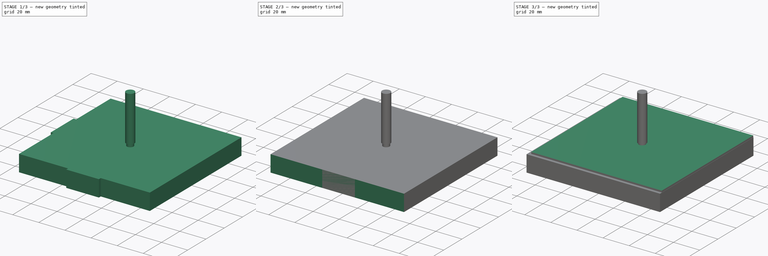
[diagram: build sequence overview — one tinted view per stage of 3, left to right]
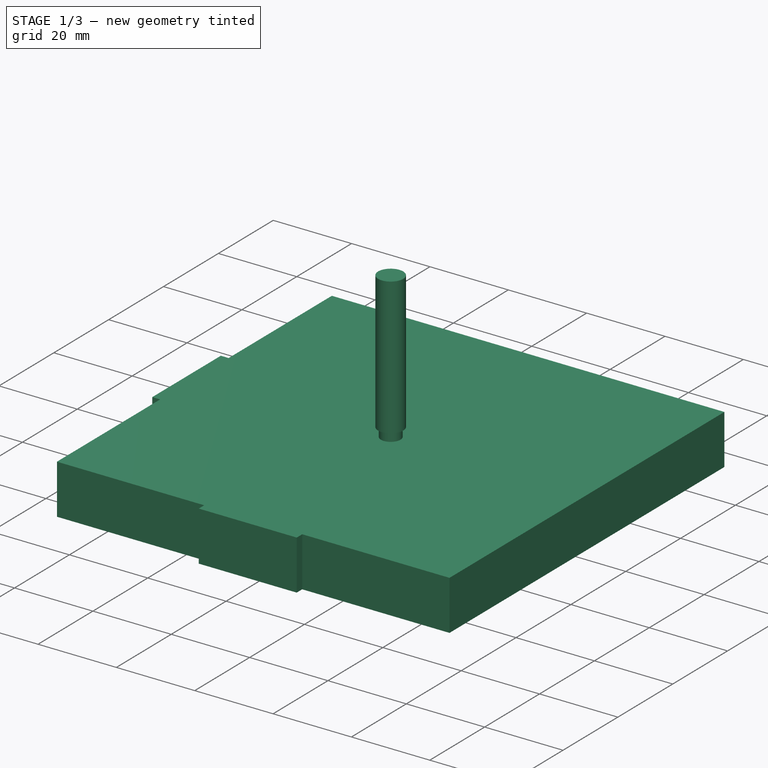
[diagram: stage 1 of 3 — iso view after this stage's code; geometry added in this stage tinted green]
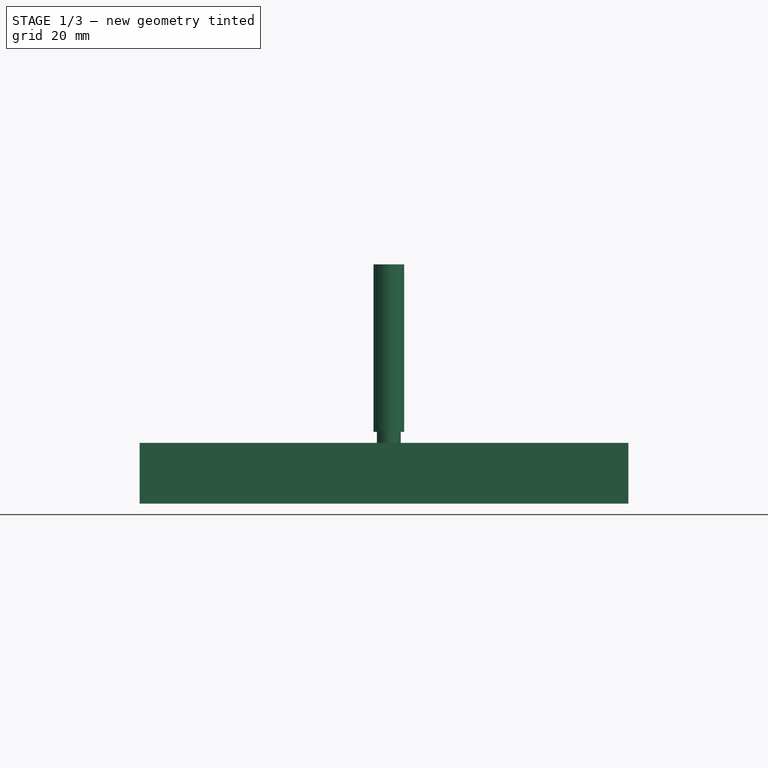
[diagram: stage 1 of 3 — front view after this stage's code; geometry added in this stage tinted green]
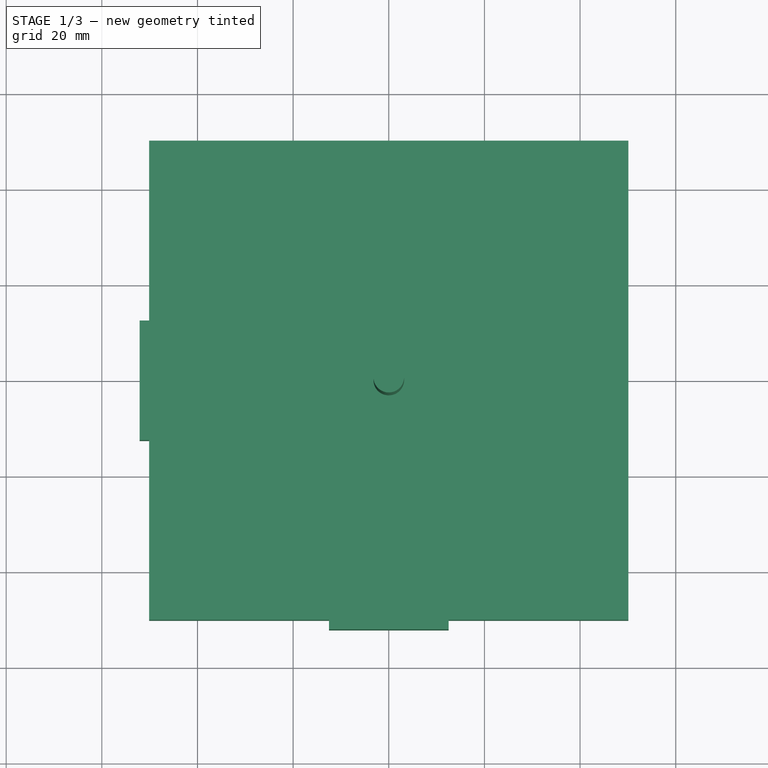
[diagram: stage 1 of 3 — top view after this stage's code; geometry added in this stage tinted green]
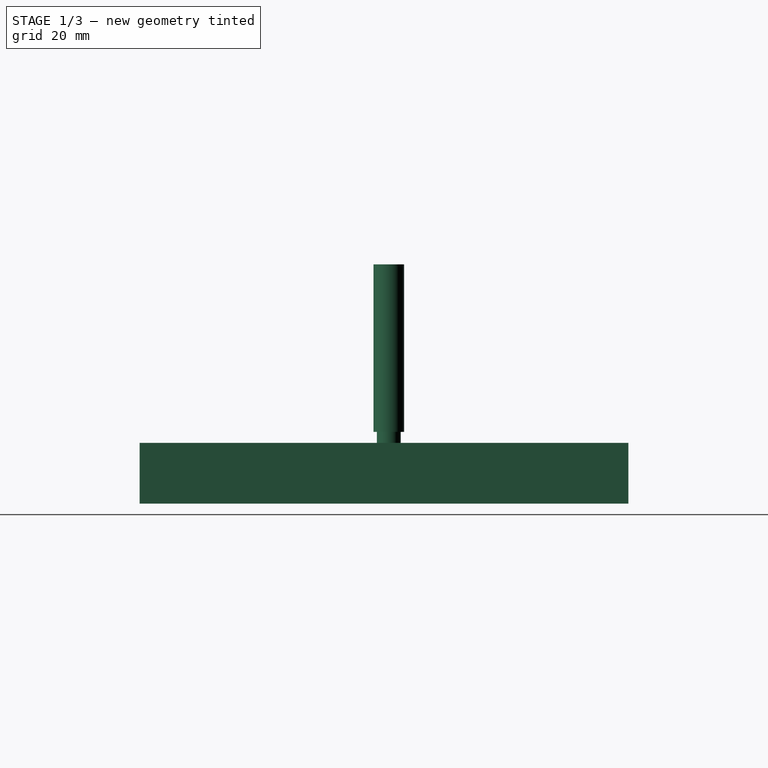
[diagram: stage 1 of 3 — right view after this stage's code; geometry added in this stage tinted green]
FCSTD DOCUMENT  (FreeCAD 0.20RUnknown)
Label: Coasters
License: All rights reserved
LicenseURL: http://en.wikipedia.org/wiki/All_rights_reserved
objects: Path::FeaturePython×9, Part::FeaturePython×6, App::DocumentObjectGroup×6, Sketcher::SketchObject×2, PartDesign::Pad×2, PartDesign::Body×2, App::FeaturePython×2
note: 17 computed .brp shape members not serialized (recipe doc carries the construction recipe); baked Part::Feature solids carry a one-line shape summary decoded from their .brp

FEATURE [Path::FeaturePython] _mm_Endmill  label="5mm Endmill001"  # Path/CAM operation (typed FeaturePython)
  HorizFeed = 15
  HorizRapid = 0
  SpindleDir = 0
  SpindleSpeed = 12000
  Tool = -> ToolBit001
  ToolNumber = 2
  VertFeed = 5
  VertRapid = 0
  expr: HorizRapid = SetupSheet.HorizRapid
  expr: VertRapid = SetupSheet.VertRapid
FEATURE [App::DocumentObjectGroup] Tools
  Group = -> [_mm_Endmill]
FEATURE [Path::FeaturePython] Profile  # Path/CAM operation (typed FeaturePython)
  Active = true
  AreaParams:
    Tolerance = 1e-07
    FitArcs = True
    Simplify = False
    CleanDistance = 0.0
    Accuracy = 0.01
    Unit = 1.0
    MinArcPoints = 4
    MaxArcPoints = 100
    ClipperScale = 10000000.0
    Fill = 0
    Coplanar = 0
    Reorient = True
    Outline = False
    Explode = False
    OpenMode = 0
    Deflection = 0.01
    SubjectFill = 0
    ClipFill = 0
    Offset = 2.5
    ExtraPass = 0
    Stepover = 0.0
    LastStepover = 0.0
    JoinType = 0
    EndType = 0
    MiterLimit = 2.0
    RoundPrecision = 0.0
    PocketMode = 0
    ToolRadius = 1.0
    PocketExtraOffset = 0.0
    PocketStepover = 0.0
    PocketLastStepover = 0.0
    FromCenter = False
    Angle = 45.0
    AngleShift = 0.0
    Shift = 0.0
    Thicken = False
    SectionCount = -1
    Stepdown = 1.0
    SectionOffset = 0.0
    SectionTolerance = 1e-06
    SectionMode = 2
    Project = False
  Base = -> [Clone]
  ClearanceHeight = 19
  CoolantMode = 0
  CycleTime = 00:02:25
  Direction = 0
  FinalDepth = 0
  HandleMultipleFeatures = 0
  JoinType = 0
  MiterLimit = 0.1
  OffsetExtra = 0
  OpFinalDepth = 14
  OpStartDepth = 17
  OpStockZMax = 14
  OpStockZMin = 0
  OpToolDiameter = 5
  PathParams = {'orientation': 1, 'feedrate': 15.0, 'feedrate_v': 5.0, 'verbose': True, 'resume_height': 17.0, 'retraction': 19.0, 'return_end': True, 'preamble': False}
  SafeHeight = 17
  Side = 0
  SplitArcs = false
  StartDepth = 14
  StartPoint = (0,0,0)
  StepDown = 3
  ToolController = -> _mm_Endmill
  UseComp = true
  UseStartPoint = false
  processCircles = false
  processHoles = false
  processPerimeter = true
  expr: ClearanceHeight = 19
  expr: FinalDepth = 0
  expr: SafeHeight = 17
  expr: StartDepth = 14
  expr: StepDown = 3
FEATURE [Path::FeaturePython] DressupTag  # Path/CAM operation (typed FeaturePython)
  Angle = 45
  Base = -> Profile
  Height = 1
  Positions = (4) [(52.499,0.049075,0),(0.049075,-52.499,0),(-52.499,-0.049075,0),(-0.0490745,52.499,0)]
  Radius = 0
  SegmentationFactor = 50
  Width = 12
FEATURE [Path::FeaturePython] Array  # Path/CAM operation (typed FeaturePython)
  Active = true
  Angle = 0
  Base = -> [DressupTag]
  Centre = (0,0,0)
  Copies = 15
  CopiesX = 0
  CopiesY = 0
  JitterMagnitude = (0,0,0)
  JitterPercent = 0
  JitterSeed = 0
  Offset = (106,0,0)
  SwapDirection = false
  ToolController = -> _mm_Endmill
  Type = 0
FEATURE [App::DocumentObjectGroup] Operations
  Group = -> [DressupTag,Array]
FEATURE [Path::FeaturePython] Job  # Path/CAM operation (typed FeaturePython)
  CycleTime = 00:02:25
  Fixtures = G54
  GeometryTolerance = 0.01
  JobType = 0
  Model = -> Model
  Operations = -> Operations
  OrderOutputBy = 0
  PostProcessor = 2
  PostProcessorOutputFile = %D/%d.ngc
  SetupSheet = -> SetupSheet
  SplitOutput = false
  Stock = -> Stock001
  Tools = -> Tools
FEATURE [Sketcher::SketchObject] Sketch001
  FullyConstrained = true
  MapMode = 5
  Support = -> [XY_Plane001]
  sketch-geometry (13):
    g0: LineSegment StartX=-50.1 StartY=50.1 StartZ=0 EndX=-50.1 EndY=12.5 EndZ=0
    g1: LineSegment StartX=-50.1 StartY=-50.1 StartZ=0 EndX=-12.5 EndY=-50.1 EndZ=0
    g2: LineSegment StartX=50.1 StartY=-50.1 StartZ=0 EndX=50.1 EndY=50.1 EndZ=0
    g3: LineSegment StartX=50.1 StartY=50.1 StartZ=0 EndX=-50.1 EndY=50.1 EndZ=0
    g4: GeomPoint X=0 Y=0 Z=0
    g5: LineSegment StartX=-52.1 StartY=12.5 StartZ=0 EndX=-50.1 EndY=12.5 EndZ=0
    g6: LineSegment StartX=-50.1 StartY=-12.5 StartZ=0 EndX=-52.1 EndY=-12.5 EndZ=0
    g7: LineSegment StartX=-52.1 StartY=-12.5 StartZ=0 EndX=-52.1 EndY=12.5 EndZ=0
    g8: LineSegment StartX=12.5 StartY=-50.1 StartZ=0 EndX=12.5 EndY=-52.1 EndZ=0
    g9: LineSegment StartX=12.5 StartY=-52.1 StartZ=0 EndX=-12.5 EndY=-52.1 EndZ=0
    g10: LineSegment StartX=-12.5 StartY=-52.1 StartZ=0 EndX=-12.5 EndY=-50.1 EndZ=0
    g11: LineSegment StartX=-50.1 StartY=-12.5 StartZ=0 EndX=-50.1 EndY=-50.1 EndZ=0
    g12: LineSegment StartX=12.5 StartY=-50.1 StartZ=0 EndX=50.1 EndY=-50.1 EndZ=0
  constraints (34):
    c: Coincident(g11,g1)
    c: Coincident(g12,g2)
    c: Coincident(g2,g3)
    c: Coincident(g3,g0)
    c: Horizontal(g1)
    c: Vertical(g0)
    c: Symmetric(g12,g0,g4)
    c: Coincident(g4,g-1)
    c: DistanceY(g11,g0) = 100.2
    c: DistanceX(g3,g3) = 100.2
    c: Coincident(g6,g7)
    c: Coincident(g7,g5)
    c: Horizontal(g5)
    c: Horizontal(g6)
    c: Vertical(g7)
    c: Coincident(g8,g9)
    c: Coincident(g9,g10)
    c: Horizontal(g9)
    c: Vertical(g8)
    c: Vertical(g10)
    c: DistanceX(g6,g6) = 2
    c: DistanceY(g7,g7) = 25
    c: Equal(g6,g10)
    c: Equal(g9,g7)
    c: Symmetric(g10,g8,g-2)
    c: Symmetric(g5,g6,g-1)
    c: DistanceY(g2,g2) = 100.2
    c: Equal(g0,g11)
    c: Equal(g1,g12)
    c: Symmetric(g2,g2,g-1)
    c: Coincident(g10,g1)
    c: Coincident(g12,g8)
    c: Coincident(g11,g6)
    c: PointOnObject(g5,g0)
FEATURE [PartDesign::Pad] Pad001
  Direction = (0,0,1)
  Length = 12.7
  Length2 = 10
  Profile = -> Sketch001
  ReferenceAxis = -> Sketch001 [N_Axis]
  Type = 0
FEATURE [PartDesign::Body] Body001  label="Holder"
  Group = -> [Sketch001,Pad001]
  Origin = -> Origin001
  Tip = -> Pad001
FEATURE [App::FeaturePython] SetupSheet001  # Path/CAM operation (typed FeaturePython)
  ClearanceHeightExpression = OpStockZMax+SetupSheet001.ClearanceHeightOffset
  ClearanceHeightOffset = 5
  CoolantMode = 0
  CoolantModes = None | Flood | Mist
  FinalDepthExpression = OpFinalDepth
  HorizRapid = 0
  SafeHeightExpression = OpStockZMax+SetupSheet001.SafeHeightOffset
  SafeHeightOffset = 3
  StartDepthExpression = OpStartDepth
  StepDownExpression = OpToolDiameter
  VertRapid = 0
FEATURE [Part::FeaturePython] Clone001  label="Model-Holder"  # Draft clone (typed FeaturePython)
  AttacherType = Attacher::AttachEngine3D
  Fuse = false
  Objects = -> [Body001]
  PathResource = Model
  Scale = (1,1,1)
FEATURE [Part::FeaturePython] ToolBit002  label="5mm Endmill002"  # Path/CAM toolbit (typed FeaturePython)
  BitPropertyNames = Chipload | CuttingEdgeHeight | Diameter | Flutes | Length | Material | ShankDiameter | SpindleDirection
  BitShape = <path>
  Chipload = 0
  CuttingEdgeHeight = 15
  Diameter = 5
  File = <userpath>/MensShed/CNCRouter/FreeCAD/Bit/5mm_Endmill.fctb
  Flutes = 0
  Length = 50
  Material = 0
  ShankDiameter = 6.4
  ShapeName = endmill
  SpindleDirection = 0
FEATURE [Path::FeaturePython] _mm_Endmill002  label="5mm Endmill003"  # Path/CAM operation (typed FeaturePython)
  HorizFeed = 15
  HorizRapid = 0
  SpindleDir = 0
  SpindleSpeed = 12000
  Tool = -> ToolBit002
  ToolNumber = 2
  VertFeed = 5
  VertRapid = 0
  expr: HorizRapid = SetupSheet001.HorizRapid
  expr: VertRapid = SetupSheet001.VertRapid
FEATURE [App::DocumentObjectGroup] Tools001
  Group = -> [_mm_Endmill002]
FEATURE [Path::FeaturePython] Profile001  # Path/CAM operation (typed FeaturePython)
  Active = true
  ClearanceHeight = 0
  CoolantMode = 0
  Direction = 0
  FinalDepth = 0
  HandleMultipleFeatures = 0
  JoinType = 0
  MiterLimit = 0
  OffsetExtra = 0
  OpFinalDepth = 0
  OpStartDepth = 0
  OpStockZMax = 0
  OpStockZMin = 0
  OpToolDiameter = 0
  SafeHeight = 0
  Side = 0
  SplitArcs = false
  StartDepth = 0
  StartPoint = (0,0,0)
  StepDown = 0
  UseComp = false
  UseStartPoint = false
  processCircles = false
  processHoles = false
  processPerimeter = false
FEATURE [Path::FeaturePython] Profile002  # Path/CAM operation (typed FeaturePython)
  Active = true
  AreaParams:
    Tolerance = 1e-07
    FitArcs = True
    Simplify = False
    CleanDistance = 0.0
    Accuracy = 0.01
    Unit = 1.0
    MinArcPoints = 4
    MaxArcPoints = 100
    ClipperScale = 10000000.0
    Fill = 0
    Coplanar = 0
    Reorient = True
    Outline = False
    Explode = False
    OpenMode = 0
    Deflection = 0.01
    SubjectFill = 0
    ClipFill = 0
    Offset = -2.5
    ExtraPass = 0
    Stepover = 0.0
    LastStepover = 0.0
    JoinType = 0
    EndType = 0
    MiterLimit = 2.0
    RoundPrecision = 0.0
    PocketMode = 0
    ToolRadius = 1.0
    PocketExtraOffset = 0.0
    PocketStepover = 0.0
    PocketLastStepover = 0.0
    FromCenter = False
    Angle = 45.0
    AngleShift = 0.0
    Shift = 0.0
    Thicken = False
    SectionCount = -1
    Stepdown = 1.0
    SectionOffset = 0.0
    SectionTolerance = 1e-06
    SectionMode = 2
    Project = False
  Base = -> [Clone001]
  ClearanceHeight = 18
  CoolantMode = 0
  CycleTime = 00:01:57
  Direction = 0
  FinalDepth = 0
  HandleMultipleFeatures = 0
  JoinType = 0
  MiterLimit = 0.1
  OffsetExtra = 0
  OpFinalDepth = 12.7
  OpStartDepth = 16.7
  OpStockZMax = 12.7
  OpStockZMin = 0
  OpToolDiameter = 5
  PathParams = {'orientation': 1, 'feedrate': 15.0, 'feedrate_v': 5.0, 'verbose': True, 'resume_height': 16.0, 'retraction': 18.0, 'return_end': True, 'preamble': False}
  SafeHeight = 16
  Side = 1
  SplitArcs = false
  StartDepth = 12.7
  StartPoint = (0,0,0)
  StepDown = 4
  ToolController = -> _mm_Endmill002
  UseComp = true
  UseStartPoint = false
  processCircles = false
  processHoles = false
  processPerimeter = true
  expr: ClearanceHeight = 18
  expr: FinalDepth = 0
  expr: SafeHeight = 16
  expr: StartDepth = 12.7
  expr: StepDown = 4
FEATURE [App::DocumentObjectGroup] Operations001
  Group = -> [Profile002]
FEATURE [Path::FeaturePython] Job001  label="HolderJob"  # Path/CAM operation (typed FeaturePython)
  CycleTime = 00:01:57
  Fixtures = G54
  GeometryTolerance = 0.01
  JobType = 0
  Model = -> Model001
  Operations = -> Operations001
  OrderOutputBy = 0
  PostProcessor = 2
  PostProcessorOutputFile = %D/%dHolder.ngc
  SetupSheet = -> SetupSheet001
  SplitOutput = false
  Stock = -> Stock002
  Tools = -> Tools001
note: 2 file-system paths scrubbed to <path> (originals preserved in the JSON sidecar)
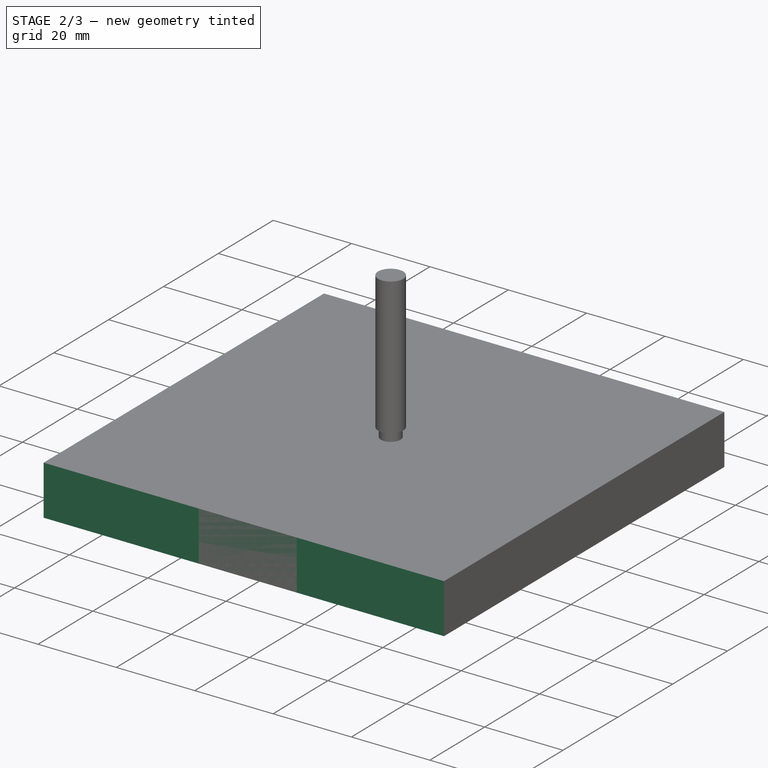
[diagram: stage 2 of 3 — iso view after this stage's code; geometry added in this stage tinted green]
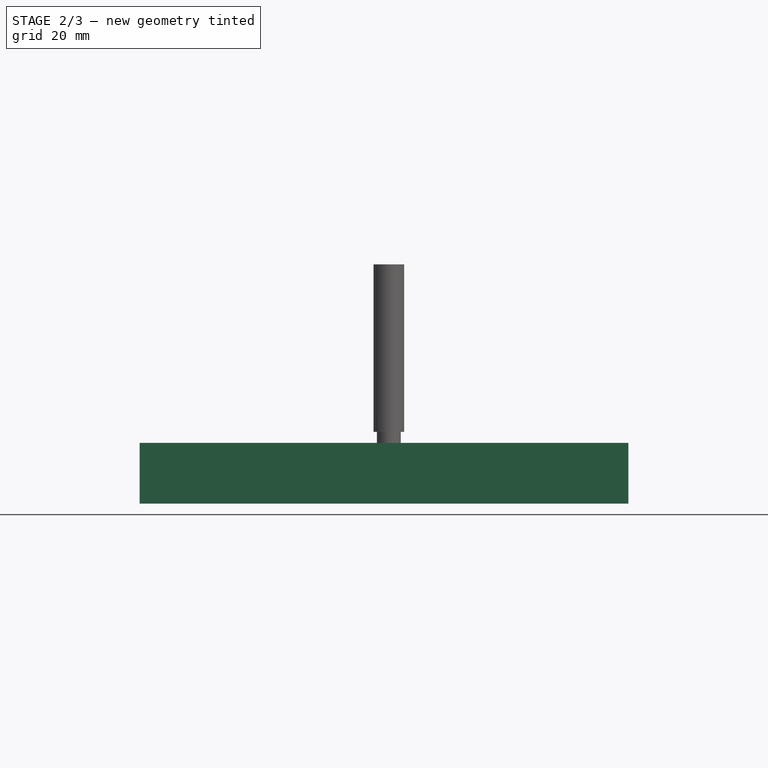
[diagram: stage 2 of 3 — front view after this stage's code; geometry added in this stage tinted green]
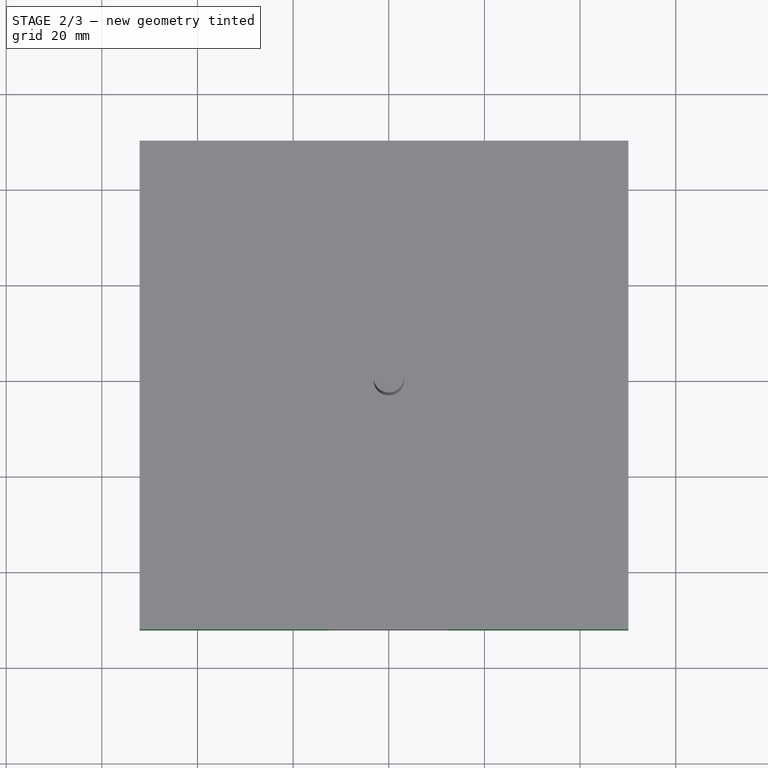
[diagram: stage 2 of 3 — top view after this stage's code; geometry added in this stage tinted green]
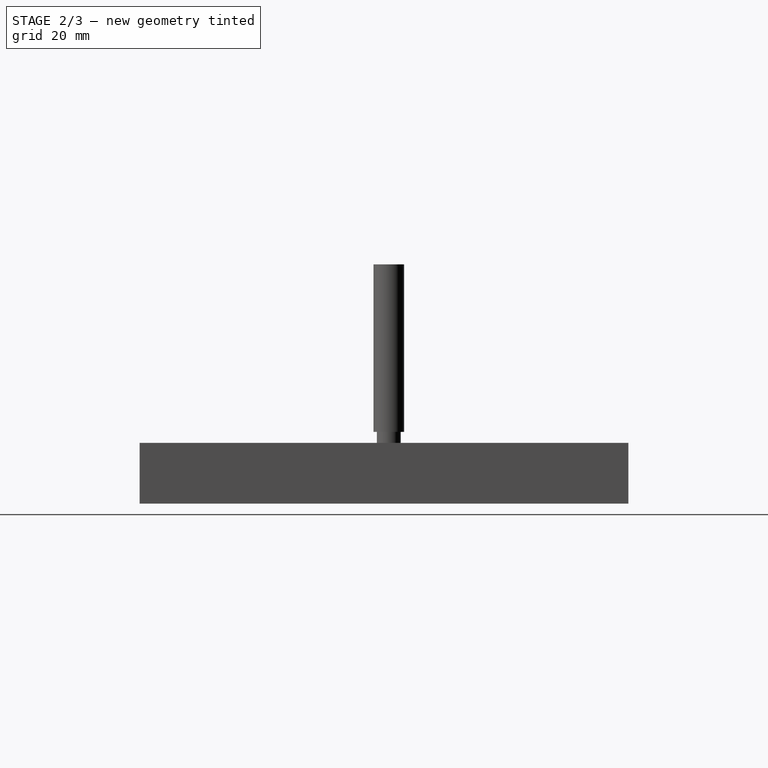
[diagram: stage 2 of 3 — right view after this stage's code; geometry added in this stage tinted green]
FEATURE [Part::FeaturePython] ToolBit001  label="5mm Endmill"  # Path/CAM toolbit (typed FeaturePython)
  BitPropertyNames = Chipload | CuttingEdgeHeight | Diameter | Flutes | Length | Material | ShankDiameter | SpindleDirection
  BitShape = <path>
  Chipload = 0
  CuttingEdgeHeight = 15
  Diameter = 5
  File = <userpath>/MensShed/CNCRouter/FreeCAD/Bit/5mm_Endmill.fctb
  Flutes = 0
  Length = 50
  Material = 0
  ShankDiameter = 6.4
  ShapeName = endmill
  SpindleDirection = 0
FEATURE [App::DocumentObjectGroup] Model001
  Group = -> [Clone001]
FEATURE [Part::FeaturePython] Stock002  # WARN: FeaturePython — macro-defined, semantics opaque (R4)
  Height = 12.7
  Length = 102.2
  Placement = pos=(-52.1,-52.1,0) rot=(0,0,1;0rad)
  StockType = CreateBox
  Width = 102.2
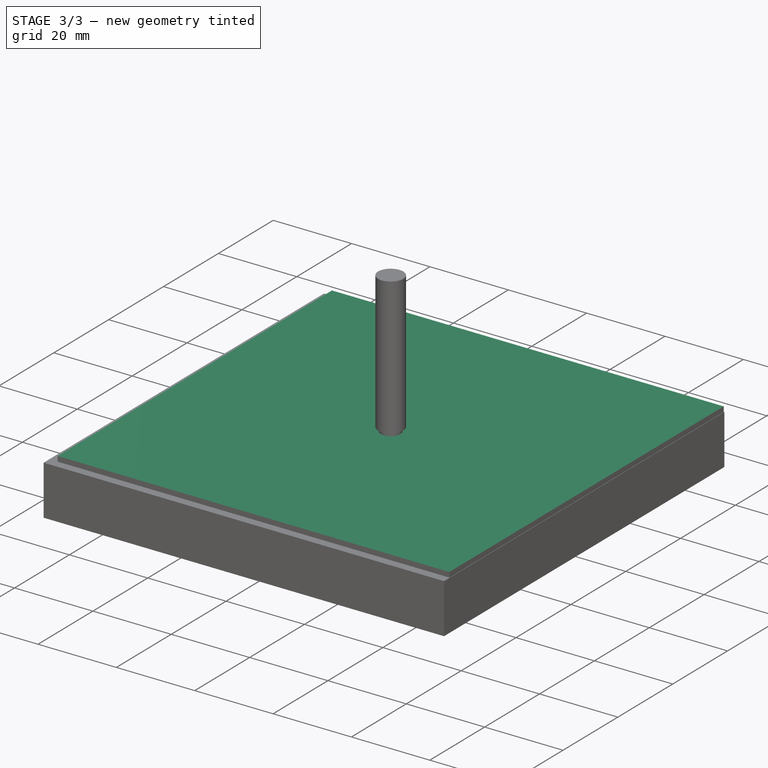
[diagram: stage 3 of 3 — iso view after this stage's code; geometry added in this stage tinted green]
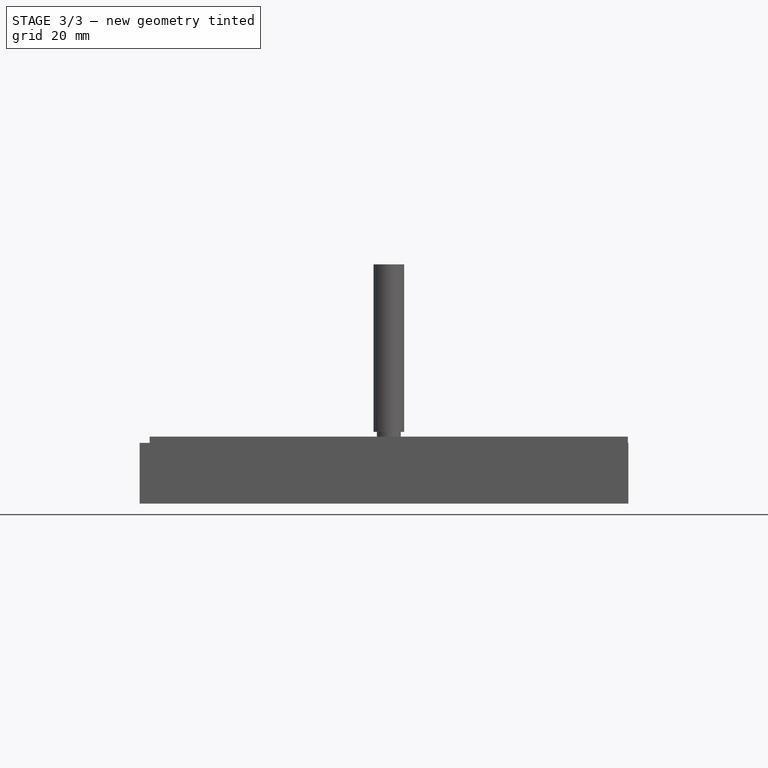
[diagram: stage 3 of 3 — front view after this stage's code; geometry added in this stage tinted green]
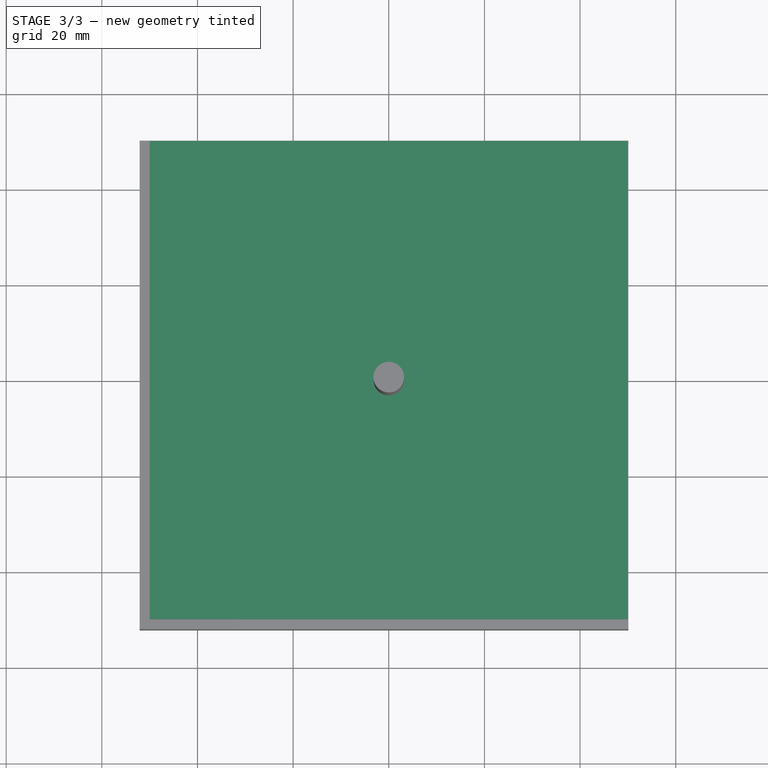
[diagram: stage 3 of 3 — top view after this stage's code; geometry added in this stage tinted green]
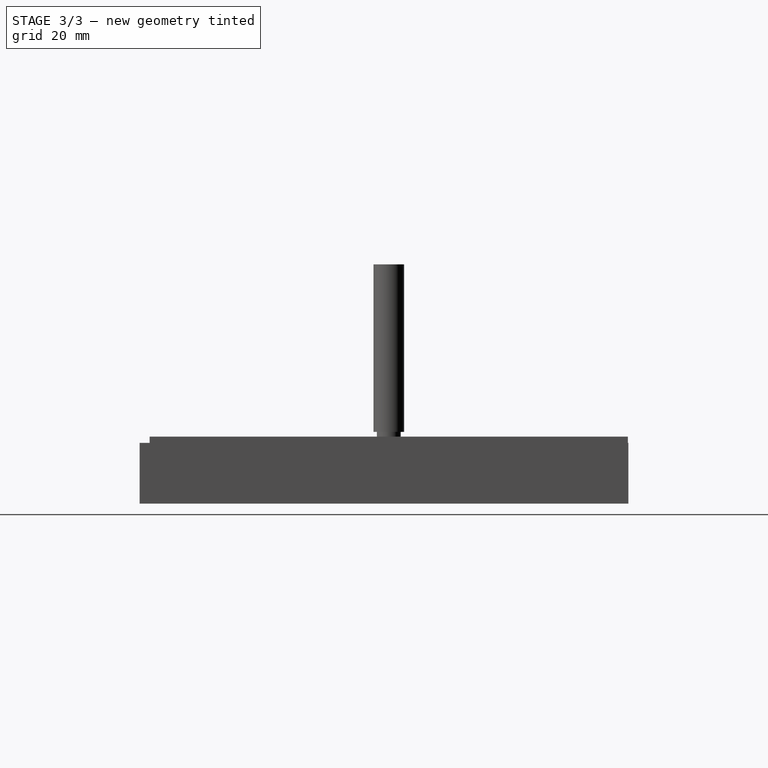
[diagram: stage 3 of 3 — right view after this stage's code; geometry added in this stage tinted green]
FEATURE [Sketcher::SketchObject] Sketch
  FullyConstrained = true
  MapMode = 5
  Support = -> [XY_Plane]
  sketch-geometry (11):
    g0: LineSegment StartX=-50 StartY=38 StartZ=0 EndX=-50 EndY=-38 EndZ=0
    g1: LineSegment StartX=-38 StartY=-50 StartZ=0 EndX=38 EndY=-50 EndZ=0
    g2: LineSegment StartX=50 StartY=-38 StartZ=0 EndX=50 EndY=38 EndZ=0
    g3: LineSegment StartX=38 StartY=50 StartZ=0 EndX=-38 EndY=50 EndZ=0
    g4: GeomPoint X=0 Y=0 Z=0
    g5: LineSegment StartX=0 StartY=50 StartZ=0 EndX=0 EndY=-50 EndZ=0
    g6: LineSegment StartX=-50 StartY=0 StartZ=0 EndX=50 EndY=0 EndZ=0
    g7: ArcOfCircle CenterX=-38 CenterY=38 CenterZ=0 NormalX=0 NormalY=0 NormalZ=1 AngleXU=0 Radius=12 StartAngle=1.5708 EndAngle=3.14159
    g8: ArcOfCircle CenterX=38 CenterY=38 CenterZ=0 NormalX=0 NormalY=0 NormalZ=1 AngleXU=0 Radius=12 StartAngle=0 EndAngle=1.5708
    g9: ArcOfCircle CenterX=-38 CenterY=-38 CenterZ=0 NormalX=0 NormalY=0 NormalZ=1 AngleXU=0 Radius=12 StartAngle=3.14159 EndAngle=4.71239
    g10: ArcOfCircle CenterX=38 CenterY=-38 CenterZ=0 NormalX=0 NormalY=0 NormalZ=1 AngleXU=0 Radius=12 StartAngle=4.71239 EndAngle=6.28319
  constraints (29):
    c: Horizontal(g1)
    c: Horizontal(g3)
    c: Vertical(g0)
    c: Vertical(g2)
    c: Coincident(g4,g-1)
    c: PointOnObject(g5,g3)
    c: PointOnObject(g5,g1)
    c: Vertical(g5)
    c: PointOnObject(g6,g0)
    c: PointOnObject(g6,g2)
    c: Horizontal(g6)
    c: DistanceX(g6,g6) = 100
    c: DistanceY(g5,g5) = 100
    c: PointOnObject(g6,g-1)
    c: PointOnObject(g5,g-2)
    c: Radius(g7) = 12
    c: Equal(g7,g8)
    c: Equal(g9,g10)
    c: Equal(g8,g10)
    c: Tangent(g7,g0) = -1.5708
    c: Tangent(g7,g3) = -1.5708
    c: Tangent(g9,g1) = -1.5708
    c: Tangent(g9,g0) = -1.5708
    c: Tangent(g1,g10) = -1.5708
    c: Tangent(g2,g10) = -1.5708
    c: Tangent(g8,g3) = -1.5708
    c: Tangent(g8,g2) = -1.5708
    c: DistanceX(g0,g4) = 50
    c: DistanceY(g4,g5) = 50
FEATURE [PartDesign::Pad] Pad
  Direction = (0,0,1)
  Length = 14
  Length2 = 10
  Profile = -> Sketch
  ReferenceAxis = -> Sketch [N_Axis]
  Type = 0
FEATURE [PartDesign::Body] Body
  Group = -> [Sketch,Pad]
  Origin = -> Origin
  Tip = -> Pad
FEATURE [App::FeaturePython] SetupSheet  # Path/CAM operation (typed FeaturePython)
  ClearanceHeightExpression = OpStockZMax+SetupSheet.ClearanceHeightOffset
  ClearanceHeightOffset = 5
  CoolantMode = 0
  CoolantModes = None | Flood | Mist
  FinalDepthExpression = OpFinalDepth
  HorizRapid = 0
  SafeHeightExpression = OpStockZMax+SetupSheet.SafeHeightOffset
  SafeHeightOffset = 3
  StartDepthExpression = OpStartDepth
  StepDownExpression = OpToolDiameter
  VertRapid = 0
FEATURE [Part::FeaturePython] Clone  label="Model-Body"  # Draft clone (typed FeaturePython)
  AttacherType = Attacher::AttachEngine3D
  Fuse = false
  Objects = -> [Body]
  PathResource = Model
  Scale = (1,1,1)
FEATURE [App::DocumentObjectGroup] Model
  Group = -> [Clone]
FEATURE [Part::FeaturePython] Stock001  # WARN: FeaturePython — macro-defined, semantics opaque (R4)
  Height = 14
  Length = 100
  Placement = pos=(-50,-50,0) rot=(0,0,1;0rad)
  StockType = CreateBox
  Width = 100
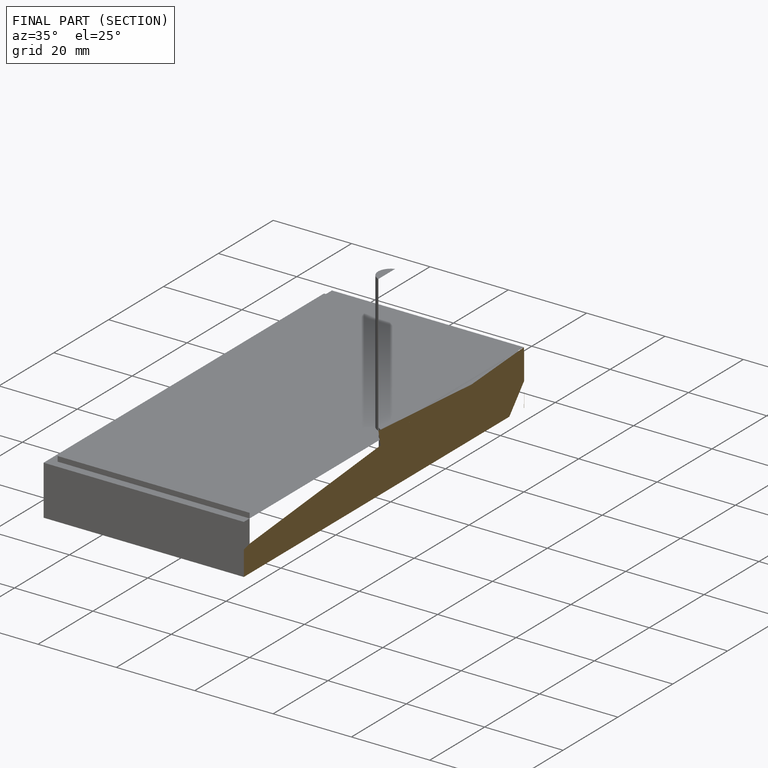
[diagram: finished part — half-section view (interior)]
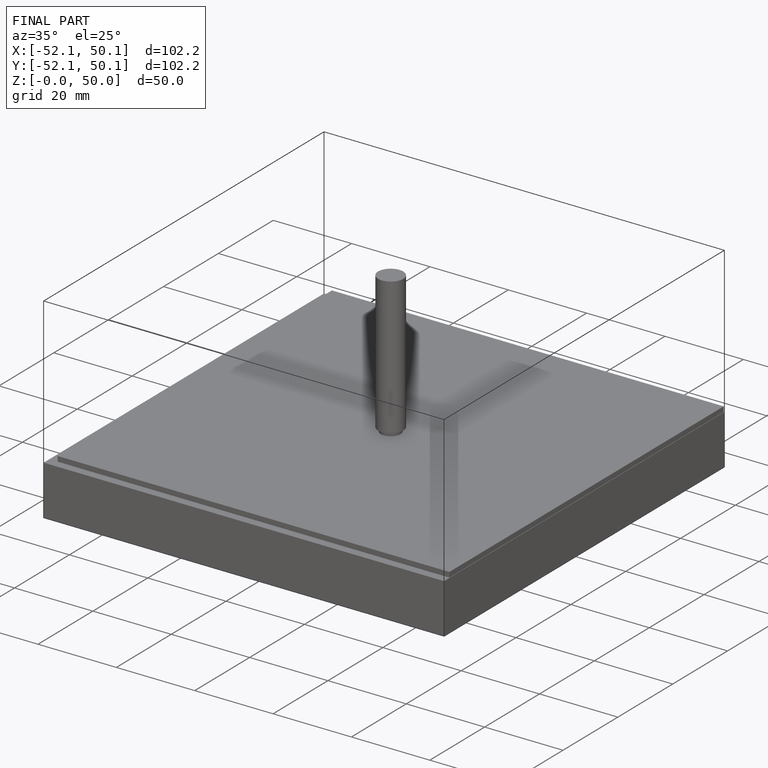
[diagram: finished part — iso view with bounding-box wireframe]
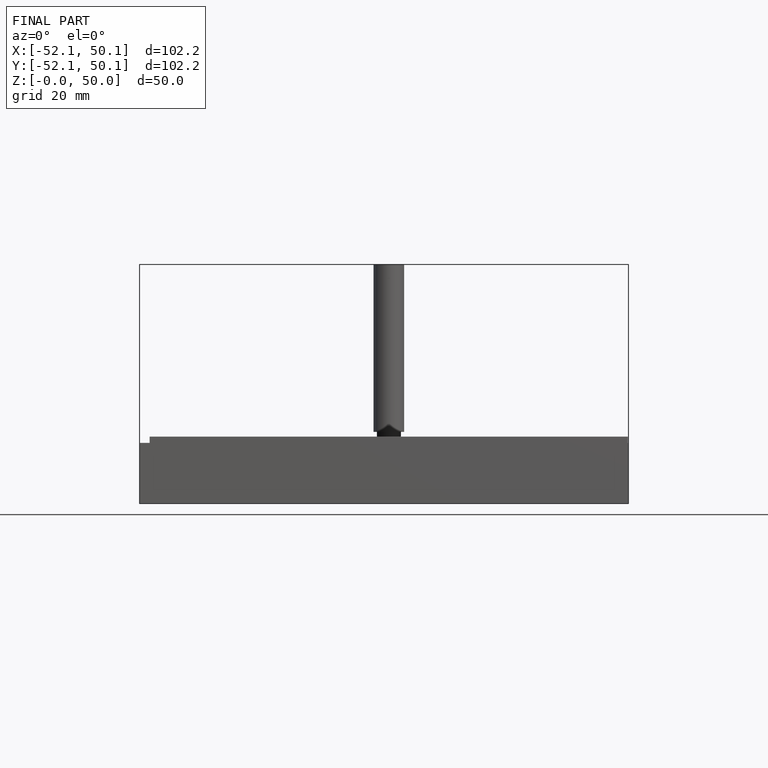
[diagram: finished part — front view with bounding-box wireframe]
